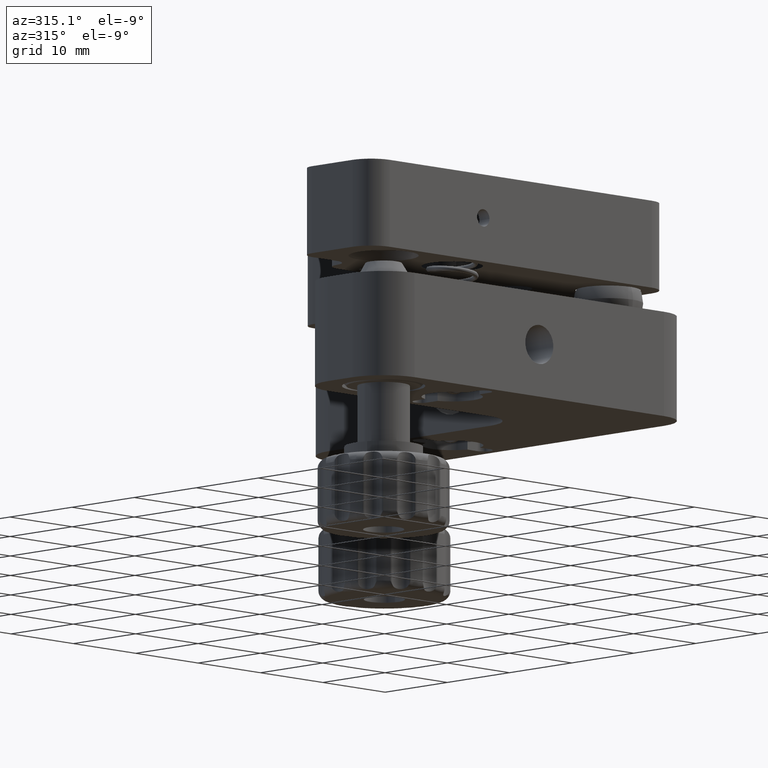
[diagram: clean part render]
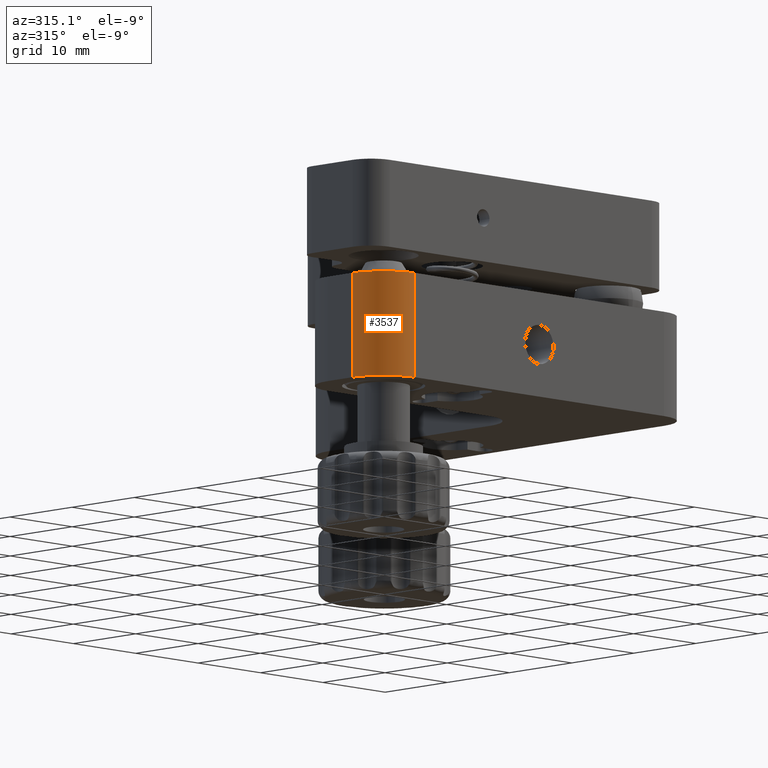
[diagram: same view with one face highlighted and labeled with its STEP entity id]
A machine part, auxiliary view. The second image highlights one B-rep face of the part: STEP entity #3537.
In plain terms, the highlighted cylindrical surface (partial cylindrical patch) has radius 5 mm, axis along (0, 0, 1).
Its self-contained STEP definition (entity closure, byte-faithful):
#253 = DIRECTION ( 'NONE',  ( 0.000000000000000000, 0.000000000000000000, 1.000000000000000000 ) ) ;
#807 = CIRCLE ( 'NONE', #13695, 5.000000000000004441 ) ;
#1195 = CARTESIAN_POINT ( 'NONE',  ( -19.99999999999999645, -25.00000000000001066, -15.00000000000000355 ) ) ;
#2725 = EDGE_CURVE ( 'NONE', #3755, #3855, #10894, .T. ) ;
#2885 = CARTESIAN_POINT ( 'NONE',  ( -25.00000000000000000, -19.99999999999999645, -15.00000000000000355 ) ) ;
#3041 = EDGE_LOOP ( 'NONE', ( #6381, #11137, #3632, #8192 ) ) ;
#3135 = EDGE_CURVE ( 'NONE', #12458, #13452, #13081, .T. ) ;
#3537 = ADVANCED_FACE ( 'NONE', ( #15108 ), #9551, .T. ) ;
#3549 = CARTESIAN_POINT ( 'NONE',  ( -19.99999999999999645, -20.00000000000000000, -3.000000000000002665 ) ) ;
#3632 = ORIENTED_EDGE ( 'NONE', *, *, #15732, .T. ) ;
#3755 = VERTEX_POINT ( 'NONE', #1195 ) ;
#3855 = VERTEX_POINT ( 'NONE', #15934 ) ;
#3890 = AXIS2_PLACEMENT_3D ( 'NONE', #11532, #10204, #8871 ) ;
#4961 = AXIS2_PLACEMENT_3D ( 'NONE', #6900, #253, #5607 ) ;
#5066 = EDGE_CURVE ( 'NONE', #13452, #3855, #807, .T. ) ;
#5607 = DIRECTION ( 'NONE',  ( 1.000000000000000000, 0.000000000000000000, 0.000000000000000000 ) ) ;
#6082 = VECTOR ( 'NONE', #8764, 1000.000000000000000 ) ;
#6381 = ORIENTED_EDGE ( 'NONE', *, *, #5066, .F. ) ;
#6900 = CARTESIAN_POINT ( 'NONE',  ( -19.99999999999999645, -20.00000000000000000, -15.00000000000000355 ) ) ;
#7974 = CARTESIAN_POINT ( 'NONE',  ( -19.99999999999999645, -25.00000000000001066, -15.00000000000000355 ) ) ;
#8021 = VECTOR ( 'NONE', #14506, 1000.000000000000000 ) ;
#8117 = CARTESIAN_POINT ( 'NONE',  ( -25.00000000000000000, -19.99999999999999645, -3.000000000000002665 ) ) ;
#8192 = ORIENTED_EDGE ( 'NONE', *, *, #2725, .T. ) ;
#8764 = DIRECTION ( 'NONE',  ( 0.000000000000000000, 0.000000000000000000, 1.000000000000000000 ) ) ;
#8871 = DIRECTION ( 'NONE',  ( -1.000000000000000000, 0.000000000000000000, 0.000000000000000000 ) ) ;
#9551 = CYLINDRICAL_SURFACE ( 'NONE', #4961, 5.000000000000004441 ) ;
#10098 = CARTESIAN_POINT ( 'NONE',  ( -25.00000000000000000, -19.99999999999999645, -15.00000000000000355 ) ) ;
#10204 = DIRECTION ( 'NONE',  ( 0.000000000000000000, 0.000000000000000000, 1.000000000000000000 ) ) ;
#10894 = LINE ( 'NONE', #7974, #8021 ) ;
#11137 = ORIENTED_EDGE ( 'NONE', *, *, #3135, .F. ) ;
#11532 = CARTESIAN_POINT ( 'NONE',  ( -19.99999999999999645, -20.00000000000000000, -15.00000000000000355 ) ) ;
#12458 = VERTEX_POINT ( 'NONE', #2885 ) ;
#13081 = LINE ( 'NONE', #10098, #6082 ) ;
#13452 = VERTEX_POINT ( 'NONE', #8117 ) ;
#13695 = AXIS2_PLACEMENT_3D ( 'NONE', #3549, #13925, #14021 ) ;
#13925 = DIRECTION ( 'NONE',  ( 0.000000000000000000, 0.000000000000000000, 1.000000000000000000 ) ) ;
#13985 = CIRCLE ( 'NONE', #3890, 5.000000000000004441 ) ;
#14021 = DIRECTION ( 'NONE',  ( -1.000000000000000000, 0.000000000000000000, 0.000000000000000000 ) ) ;
#14506 = DIRECTION ( 'NONE',  ( 0.000000000000000000, 0.000000000000000000, 1.000000000000000000 ) ) ;
#15108 = FACE_OUTER_BOUND ( 'NONE', #3041, .T. ) ;
#15732 = EDGE_CURVE ( 'NONE', #12458, #3755, #13985, .T. ) ;
#15934 = CARTESIAN_POINT ( 'NONE',  ( -19.99999999999999645, -25.00000000000001066, -3.000000000000002665 ) ) ;